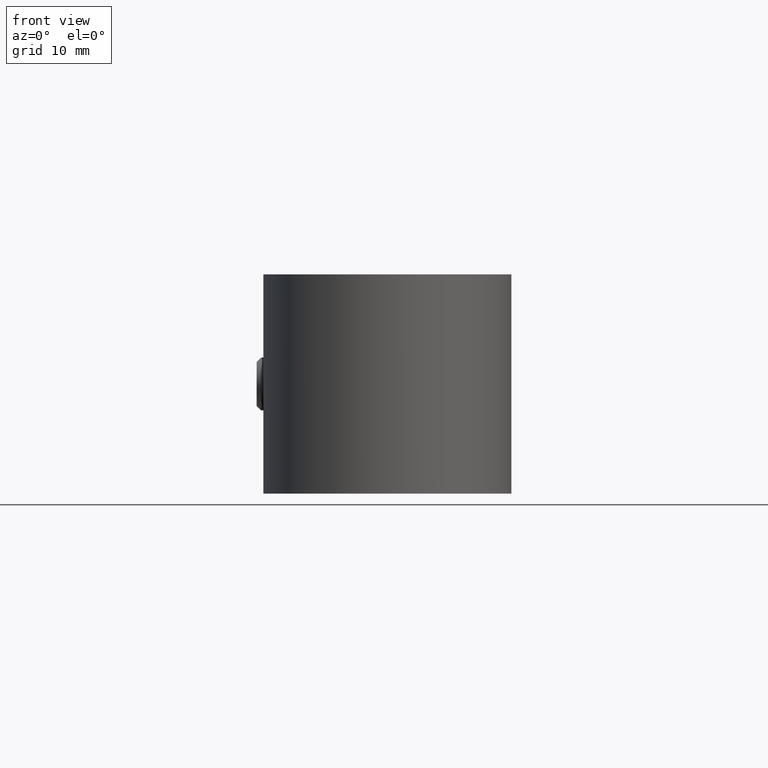
[diagram: clean part render]
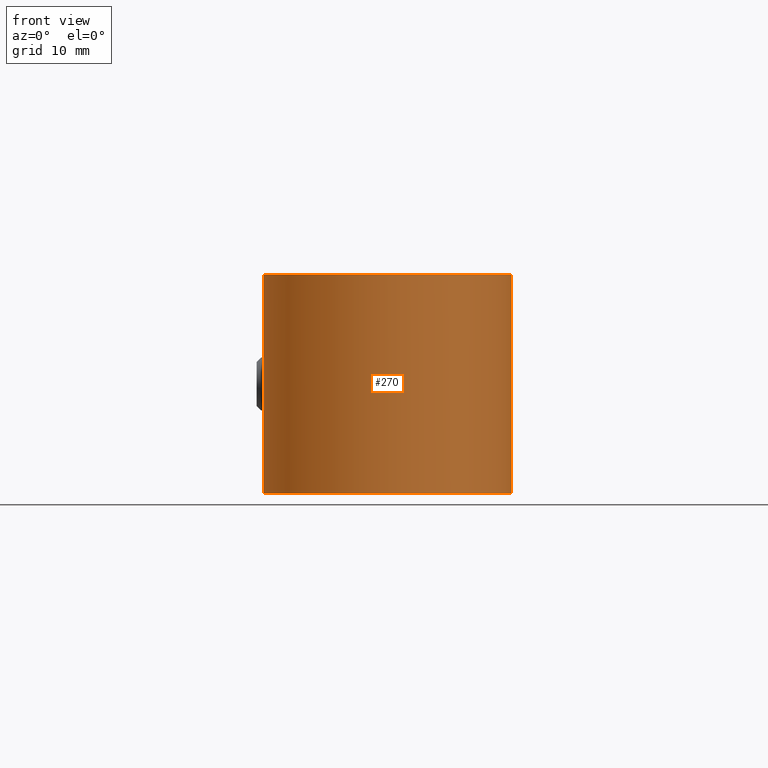
[diagram: same view with one face highlighted and labeled with its STEP entity id]
A machine part, front view. The second image highlights one B-rep face of the part: STEP entity #270.
In plain terms, the highlighted cylindrical surface (partial cylindrical patch) has radius 14.2 mm, axis along (0, 0, -1).
Its self-contained STEP definition (entity closure, byte-faithful):
#270 = ADVANCED_FACE( '', ( #376 ), #377, .T. );
#376 = FACE_OUTER_BOUND( '', #608, .T. );
#377 = CYLINDRICAL_SURFACE( '', #609, 14.2000000000000 );
#608 = EDGE_LOOP( '', ( #863, #864, #865, #866, #867, #868, #869, #870, #871, #872, #873, #874 ) );
#609 = AXIS2_PLACEMENT_3D( '', #875, #876, #877 );
#863 = ORIENTED_EDGE( '', *, *, #1635, .F. );
#864 = ORIENTED_EDGE( '', *, *, #1634, .T. );
#865 = ORIENTED_EDGE( '', *, *, #1636, .F. );
#866 = ORIENTED_EDGE( '', *, *, #1637, .F. );
#867 = ORIENTED_EDGE( '', *, *, #1638, .F. );
#868 = ORIENTED_EDGE( '', *, *, #1639, .F. );
#869 = ORIENTED_EDGE( '', *, *, #1640, .F. );
#870 = ORIENTED_EDGE( '', *, *, #1641, .F. );
#871 = ORIENTED_EDGE( '', *, *, #1623, .T. );
#872 = ORIENTED_EDGE( '', *, *, #1642, .T. );
#873 = ORIENTED_EDGE( '', *, *, #1643, .F. );
#874 = ORIENTED_EDGE( '', *, *, #1644, .F. );
#875 = CARTESIAN_POINT( '', ( 0.000000000000000, 0.000000000000000, -12.5000000000000 ) );
#876 = DIRECTION( '', ( 0.000000000000000, 0.000000000000000, -1.00000000000000 ) );
#877 = DIRECTION( '', ( -1.00000000000000, 6.06692130572647E-017, 0.000000000000000 ) );
#1623 = EDGE_CURVE( '', #1869, #1867, #1870, .T. );
#1634 = EDGE_CURVE( '', #1884, #1888, #1890, .T. );
#1635 = EDGE_CURVE( '', #1884, #1891, #1892, .F. );
#1636 = EDGE_CURVE( '', #1893, #1888, #1894, .T. );
#1637 = EDGE_CURVE( '', #1895, #1893, #1896, .T. );
#1638 = EDGE_CURVE( '', #1897, #1895, #1898, .F. );
#1639 = EDGE_CURVE( '', #1899, #1897, #1900, .T. );
#1640 = EDGE_CURVE( '', #1901, #1899, #1902, .F. );
#1641 = EDGE_CURVE( '', #1869, #1901, #1903, .T. );
#1642 = EDGE_CURVE( '', #1867, #1904, #1905, .T. );
#1643 = EDGE_CURVE( '', #1906, #1904, #1907, .F. );
#1644 = EDGE_CURVE( '', #1891, #1906, #1908, .T. );
#1867 = VERTEX_POINT( '', #2271 );
#1869 = VERTEX_POINT( '', #2273 );
#1870 = CIRCLE( '', #2274, 14.2000000000000 );
#1884 = VERTEX_POINT( '', #2292 );
#1888 = VERTEX_POINT( '', #2297 );
#1890 = LINE( '', #2299, #2300 );
#1891 = VERTEX_POINT( '', #2301 );
#1892 = ELLIPSE( '', #2302, 24.7569444978196, 14.2000000000000 );
#1893 = VERTEX_POINT( '', #2303 );
#1894 = CIRCLE( '', #2304, 14.2000000000000 );
#1895 = VERTEX_POINT( '', #2305 );
#1896 = LINE( '', #2306, #2307 );
#1897 = VERTEX_POINT( '', #2308 );
#1898 = ELLIPSE( '', #2309, 24.7569444978196, 14.2000000000000 );
#1899 = VERTEX_POINT( '', #2310 );
#1900 = B_SPLINE_CURVE_WITH_KNOTS( '', 3, ( #2311, #2312, #2313, #2314, #2315, #2316, #2317, #2318, #2319, #2320, #2321, #2322, #2323, #2324, #2325, #2326, #2327, #2328 ), .UNSPECIFIED., .F., .F., ( 4, 2, 2, 2, 2, 2, 2, 2, 4 ), ( 3.91875722635919E-017, 0.000690300038206903, 0.00138060007641377, 0.00207090011462063, 0.00276120015282750, 0.00345150019103436, 0.00414180022924122, 0.00483210026744809, 0.00552240030565495 ), .UNSPECIFIED. );
#1901 = VERTEX_POINT( '', #2329 );
#1902 = ELLIPSE( '', #2330, 24.7569444978196, 14.2000000000000 );
#1903 = LINE( '', #2331, #2332 );
#1904 = VERTEX_POINT( '', #2333 );
#1905 = LINE( '', #2334, #2335 );
#1906 = VERTEX_POINT( '', #2336 );
#1907 = ELLIPSE( '', #2337, 24.7569444978196, 14.2000000000000 );
#1908 = B_SPLINE_CURVE_WITH_KNOTS( '', 3, ( #2338, #2339, #2340, #2341, #2342, #2343, #2344, #2345, #2346, #2347, #2348, #2349, #2350, #2351, #2352, #2353, #2354, #2355 ), .UNSPECIFIED., .F., .F., ( 4, 2, 2, 2, 2, 2, 2, 2, 4 ), ( 0.000000000000000, 0.000689599463066087, 0.00137919892613217, 0.00206879838919826, 0.00275839785226435, 0.00344799731533044, 0.00413759677839652, 0.00482719624146261, 0.00551679570452870 ), .UNSPECIFIED. );
#2271 = CARTESIAN_POINT( '', ( 5.91666666666667, 12.9086426689856, -12.5000000000000 ) );
#2273 = CARTESIAN_POINT( '', ( -5.91666666666666, 12.9086426689856, -12.5000000000000 ) );
#2274 = AXIS2_PLACEMENT_3D( '', #2971, #2972, #2973 );
#2292 = CARTESIAN_POINT( '', ( 5.91666666666667, 12.9086426689856, 3.14738995722250 ) );
#2297 = CARTESIAN_POINT( '', ( 5.91666666666667, 12.9086426689856, 12.5000000000000 ) );
#2299 = CARTESIAN_POINT( '', ( 5.91666666666667, 12.9086426689856, -12.5000000000000 ) );
#2300 = VECTOR( '', #2994, 1000.00000000000 );
#2301 = CARTESIAN_POINT( '', ( 6.81750820184972, 12.4563871936333, 2.29430574540427 ) );
#2302 = AXIS2_PLACEMENT_3D( '', #2995, #2996, #2997 );
#2303 = CARTESIAN_POINT( '', ( -5.91666666666667, 12.9086426689856, 12.5000000000000 ) );
#2304 = AXIS2_PLACEMENT_3D( '', #2998, #2999, #3000 );
#2305 = CARTESIAN_POINT( '', ( -5.91666666666667, 12.9086426689856, 3.14738995722249 ) );
#2306 = CARTESIAN_POINT( '', ( -5.91666666666667, 12.9086426689856, -12.5000000000000 ) );
#2307 = VECTOR( '', #3001, 1000.00000000000 );
#2308 = CARTESIAN_POINT( '', ( -6.81750820184984, 12.4563871936332, 2.29430574540416 ) );
#2309 = AXIS2_PLACEMENT_3D( '', #3002, #3003, #3004 );
#2310 = CARTESIAN_POINT( '', ( -6.81750820184979, 12.4563871936333, -2.29430574540421 ) );
#2311 = CARTESIAN_POINT( '', ( -6.81750820184984, 12.4563871936332, -2.29430574540421 ) );
#2312 = CARTESIAN_POINT( '', ( -6.97592089923627, 12.3696863030041, -2.14894117752016 ) );
#2313 = CARTESIAN_POINT( '', ( -7.12461698398910, 12.2843530360383, -1.99472745669092 ) );
#2314 = CARTESIAN_POINT( '', ( -7.39905182095137, 12.1210366237152, -1.66335427041231 ) );
#2315 = CARTESIAN_POINT( '', ( -7.52574865064372, 12.0424183034407, -1.48489172159403 ) );
#2316 = CARTESIAN_POINT( '', ( -7.74387365113457, 11.9033252590599, -1.10072991833800 ) );
#2317 = CARTESIAN_POINT( '', ( -7.83433550971966, 11.8435291148886, -0.897522699234625 ) );
#2318 = CARTESIAN_POINT( '', ( -7.96302024918533, 11.7573935583161, -0.458098651680728 ) );
#2319 = CARTESIAN_POINT( '', ( -7.99794244506757, 11.7334102781311, -0.230813007693426 ) );
#2320 = CARTESIAN_POINT( '', ( -7.99739541768412, 11.7337831342994, 0.236261927539923 ) );
#2321 = CARTESIAN_POINT( '', ( -7.96202329991085, 11.7580728962205, 0.463187817593434 ) );
#2322 = CARTESIAN_POINT( '', ( -7.83227454718355, 11.8448963135478, 0.902835148944114 ) );
#2323 = CARTESIAN_POINT( '', ( -7.74152765498327, 11.9048488979732, 1.10545303603081 ) );
#2324 = CARTESIAN_POINT( '', ( -7.52372720469550, 12.0436791166889, 1.48784854809540 ) );
#2325 = CARTESIAN_POINT( '', ( -7.39642020224438, 12.1226389881206, 1.66682877083762 ) );
#2326 = CARTESIAN_POINT( '', ( -7.12243171888057, 12.2856165597969, 1.99706395292644 ) );
#2327 = CARTESIAN_POINT( '', ( -6.97452311752967, 12.3704513232384, 2.15022382680978 ) );
#2328 = CARTESIAN_POINT( '', ( -6.81750820184984, 12.4563871936332, 2.29430574540416 ) );
#2329 = CARTESIAN_POINT( '', ( -5.91666666666667, 12.9086426689856, -3.14738995722252 ) );
#2330 = AXIS2_PLACEMENT_3D( '', #3005, #3006, #3007 );
#2331 = CARTESIAN_POINT( '', ( -5.91666666666667, 12.9086426689856, -12.5000000000000 ) );
#2332 = VECTOR( '', #3008, 1000.00000000000 );
#2333 = CARTESIAN_POINT( '', ( 5.91666666666667, 12.9086426689856, -3.14738995722253 ) );
#2334 = CARTESIAN_POINT( '', ( 5.91666666666667, 12.9086426689856, -12.5000000000000 ) );
#2335 = VECTOR( '', #3009, 1000.00000000000 );
#2336 = CARTESIAN_POINT( '', ( 6.81750820184979, 12.4563871936333, -2.29430574540421 ) );
#2337 = AXIS2_PLACEMENT_3D( '', #3010, #3011, #3012 );
#2338 = CARTESIAN_POINT( '', ( 6.81750820184972, 12.4563871936333, 2.29430574540427 ) );
#2339 = CARTESIAN_POINT( '', ( 6.97576012856887, 12.3697742944359, 2.14908870583686 ) );
#2340 = CARTESIAN_POINT( '', ( 7.12431484934410, 12.2845264703606, 1.99504009693200 ) );
#2341 = CARTESIAN_POINT( '', ( 7.39851832434820, 12.1213604549101, 1.66405047515995 ) );
#2342 = CARTESIAN_POINT( '', ( 7.52511766539434, 12.0428121321703, 1.48581995319600 ) );
#2343 = CARTESIAN_POINT( '', ( 7.74317593431703, 11.9037786596942, 1.10214068458248 ) );
#2344 = CARTESIAN_POINT( '', ( 7.83365015999681, 11.8439831819683, 0.899203581808512 ) );
#2345 = CARTESIAN_POINT( '', ( 7.96252871360787, 11.7577272008214, 0.460430515425147 ) );
#2346 = CARTESIAN_POINT( '', ( 7.99765855662987, 11.7336037776880, 0.233362425571200 ) );
#2347 = CARTESIAN_POINT( '', ( 7.99768249082251, 11.7335874640368, -0.233123717016782 ) );
#2348 = CARTESIAN_POINT( '', ( 7.96267439226516, 11.7576293440457, -0.459884412027783 ) );
#2349 = CARTESIAN_POINT( '', ( 7.83359456379887, 11.8440207480070, -0.899442960286725 ) );
#2350 = CARTESIAN_POINT( '', ( 7.74317741783551, 11.9037717330754, -1.10200985287253 ) );
#2351 = CARTESIAN_POINT( '', ( 7.52605205483914, 12.0422223225240, -1.48430354046360 ) );
#2352 = CARTESIAN_POINT( '', ( 7.39904212482528, 12.1210437872825, -1.66337740217920 ) );
#2353 = CARTESIAN_POINT( '', ( 7.12444371253436, 12.2844547557101, -1.99492524607672 ) );
#2354 = CARTESIAN_POINT( '', ( 6.97577176830095, 12.3697679238914, -2.14907802484572 ) );
#2355 = CARTESIAN_POINT( '', ( 6.81750820184982, 12.4563871936332, -2.29430574540423 ) );
#2971 = CARTESIAN_POINT( '', ( 0.000000000000000, 0.000000000000000, -12.5000000000000 ) );
#2972 = DIRECTION( '', ( 0.000000000000000, 0.000000000000000, 1.00000000000000 ) );
#2973 = DIRECTION( '', ( 1.00000000000000, 0.000000000000000, 0.000000000000000 ) );
#2994 = DIRECTION( '', ( 0.000000000000000, 0.000000000000000, 1.00000000000000 ) );
#2995 = CARTESIAN_POINT( '', ( 0.000000000000000, 0.000000000000000, 19.0458045417936 ) );
#2996 = DIRECTION( '', ( 0.729869815763731, 0.371887245949431, 0.573576436351046 ) );
#2997 = DIRECTION( '', ( -0.511060346909496, -0.260398252977840, 0.819152044288992 ) );
#2998 = CARTESIAN_POINT( '', ( 0.000000000000000, 0.000000000000000, 12.5000000000000 ) );
#2999 = DIRECTION( '', ( 0.000000000000000, 0.000000000000000, 1.00000000000000 ) );
#3000 = DIRECTION( '', ( 1.00000000000000, 0.000000000000000, 0.000000000000000 ) );
#3001 = DIRECTION( '', ( 0.000000000000000, 0.000000000000000, 1.00000000000000 ) );
#3002 = CARTESIAN_POINT( '', ( 0.000000000000000, 0.000000000000000, 19.0458045417936 ) );
#3003 = DIRECTION( '', ( -0.729869815763731, 0.371887245949431, 0.573576436351046 ) );
#3004 = DIRECTION( '', ( 0.511060346909496, -0.260398252977840, 0.819152044288992 ) );
#3005 = CARTESIAN_POINT( '', ( 0.000000000000000, 0.000000000000000, -19.0458045417936 ) );
#3006 = DIRECTION( '', ( -0.729869815763730, 0.371887245949432, -0.573576436351046 ) );
#3007 = DIRECTION( '', ( -0.511060346909496, 0.260398252977841, 0.819152044288992 ) );
#3008 = DIRECTION( '', ( 0.000000000000000, 0.000000000000000, 1.00000000000000 ) );
#3009 = DIRECTION( '', ( 0.000000000000000, 0.000000000000000, 1.00000000000000 ) );
#3010 = CARTESIAN_POINT( '', ( 0.000000000000000, 0.000000000000000, -19.0458045417936 ) );
#3011 = DIRECTION( '', ( 0.729869815763730, 0.371887245949432, -0.573576436351046 ) );
#3012 = DIRECTION( '', ( 0.511060346909496, 0.260398252977841, 0.819152044288992 ) );